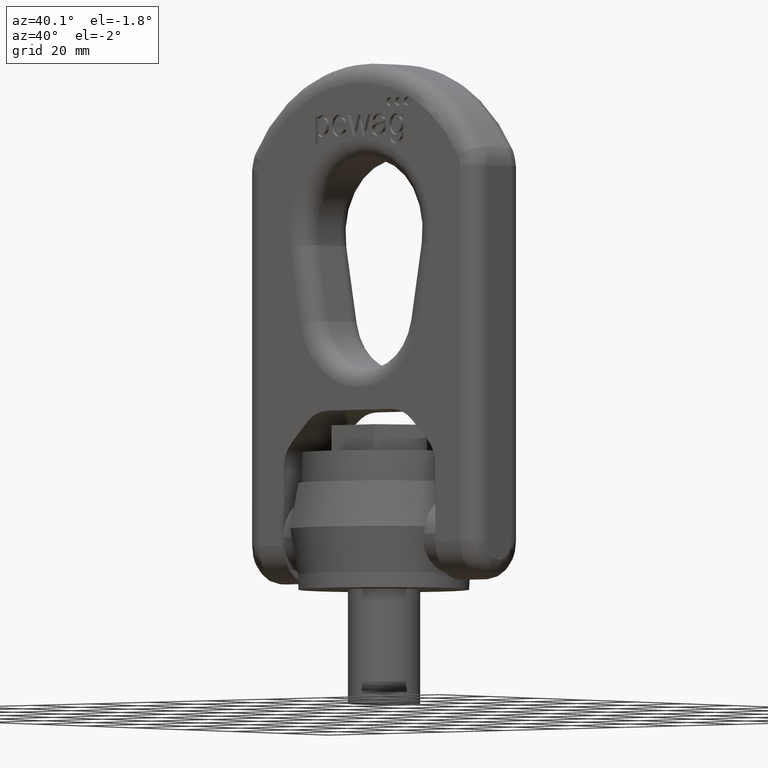
[diagram: clean part render]
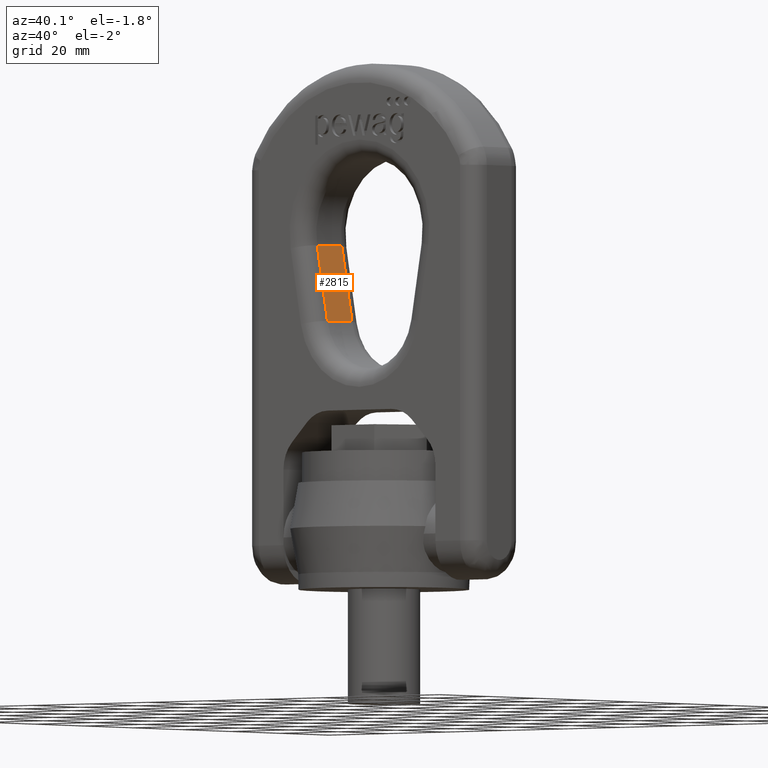
[diagram: same view with one face highlighted and labeled with its STEP entity id]
A machine part, auxiliary view. The second image highlights one B-rep face of the part: STEP entity #2815.
In plain terms, the highlighted planar face has unit normal (-0.9848, 0, -0.1736).
Its self-contained STEP definition (entity closure, byte-faithful):
#1856=LINE('',#7721,#2164);
#1857=LINE('',#7724,#2165);
#1858=LINE('',#7726,#2166);
#1859=LINE('',#7728,#2167);
#2164=VECTOR('',#6327,1.);
#2165=VECTOR('',#6328,1.);
#2166=VECTOR('',#6329,1.);
#2167=VECTOR('',#6330,1.);
#2455=FACE_OUTER_BOUND('',#3193,.T.);
#2687=PLANE('',#5895);
#2815=ADVANCED_FACE('',(#2455),#2687,.F.);
#3193=EDGE_LOOP('',(#3719,#3720,#3721,#3722));
#3719=ORIENTED_EDGE('',*,*,#5350,.T.);
#3720=ORIENTED_EDGE('',*,*,#5351,.T.);
#3721=ORIENTED_EDGE('',*,*,#5352,.F.);
#3722=ORIENTED_EDGE('',*,*,#5353,.T.);
#4911=VERTEX_POINT('',#7722);
#4912=VERTEX_POINT('',#7723);
#4913=VERTEX_POINT('',#7725);
#4914=VERTEX_POINT('',#7727);
#5350=EDGE_CURVE('',#4911,#4912,#1856,.T.);
#5351=EDGE_CURVE('',#4912,#4913,#1857,.T.);
#5352=EDGE_CURVE('',#4914,#4913,#1858,.T.);
#5353=EDGE_CURVE('',#4914,#4911,#1859,.T.);
#5895=AXIS2_PLACEMENT_3D('',#7729,#6331,#6332);
#6327=DIRECTION('',(0.,1.,0.));
#6328=DIRECTION('',(-0.17364817766693,4.0684217855581E-16,0.984807753012208));
#6329=DIRECTION('',(0.,1.,0.));
#6330=DIRECTION('',(0.17364817766693,0.,-0.984807753012208));
#6331=DIRECTION('',(-0.984807753012208,0.,-0.17364817766693));
#6332=DIRECTION('',(-0.17364817766693,0.,0.984807753012208));
#7721=CARTESIAN_POINT('',(-15.1932680343379,-10.,70.7486656039905));
#7722=CARTESIAN_POINT('',(-15.1932680343379,-5.,70.7486656039905));
#7723=CARTESIAN_POINT('',(-15.1932680343379,5.00000000000005,70.7486656039905));
#7724=CARTESIAN_POINT('',(-18.711347307232,5.00000000000006,90.7006846243283));
#7725=CARTESIAN_POINT('',(-18.711347307232,5.00000000000006,90.7006846243283));
#7726=CARTESIAN_POINT('',(-18.711347307232,-10.,90.7006846243283));
#7727=CARTESIAN_POINT('',(-18.711347307232,-5.,90.7006846243283));
#7728=CARTESIAN_POINT('',(-15.1932680343379,-5.,70.7486656039905));
#7729=CARTESIAN_POINT('',(-15.1932680343379,-10.,70.7486656039905));